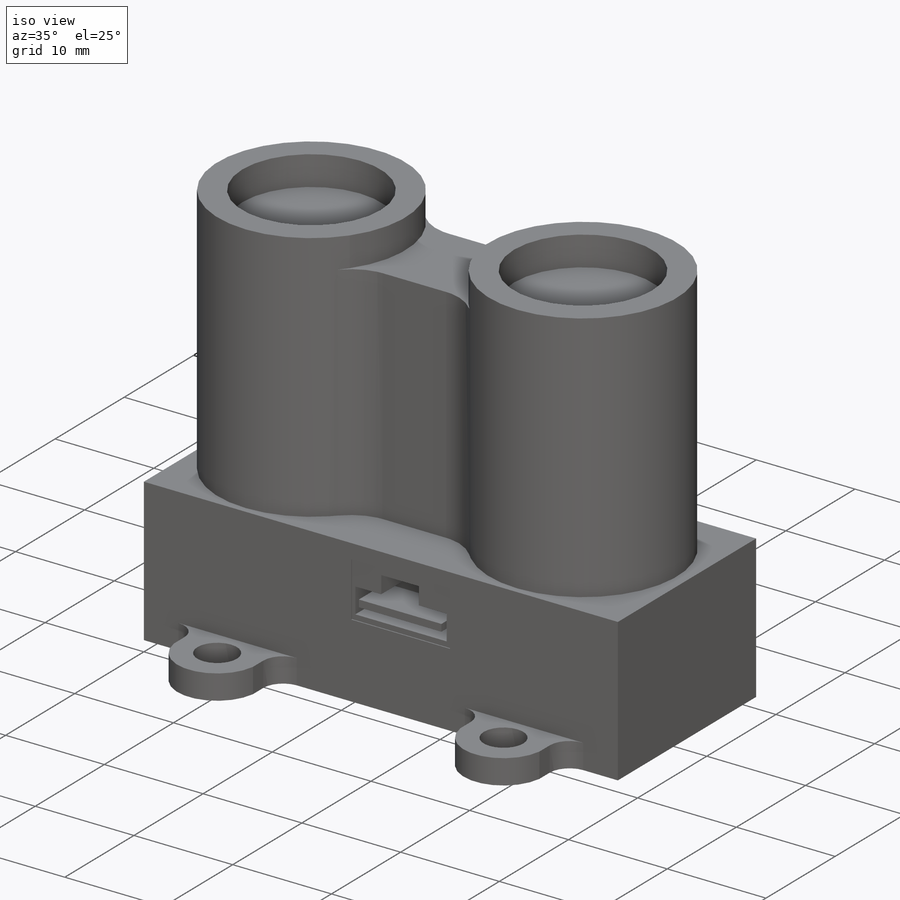
[diagram: iso view]
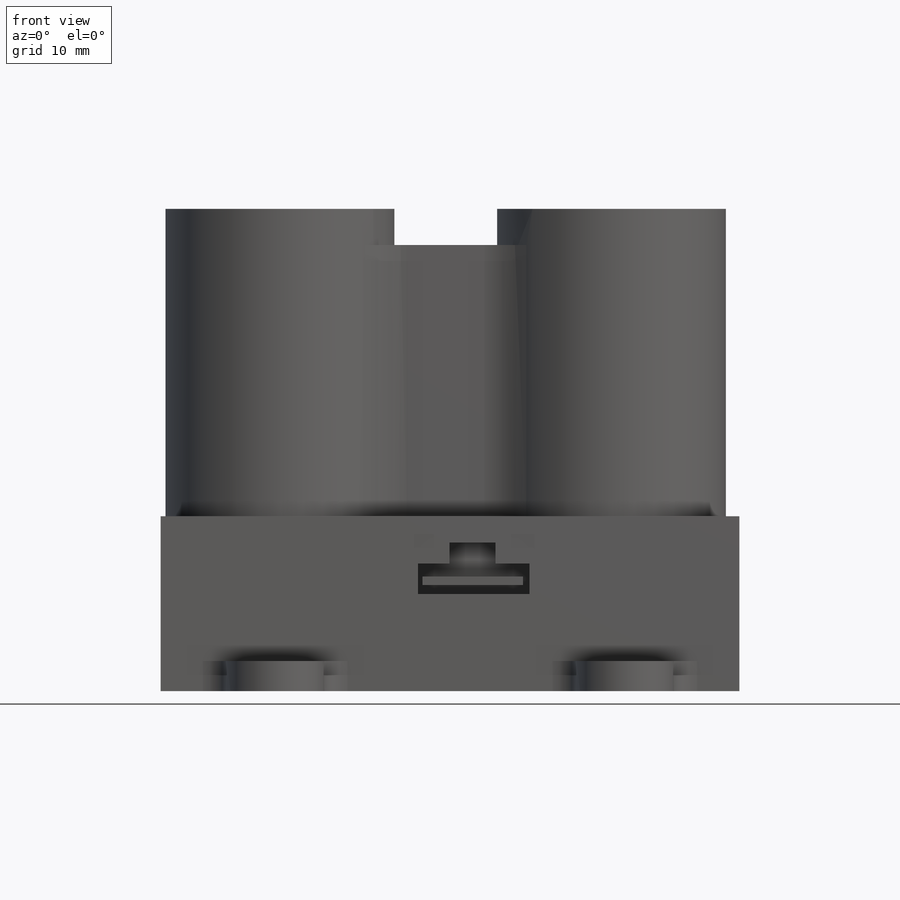
[diagram: front view]
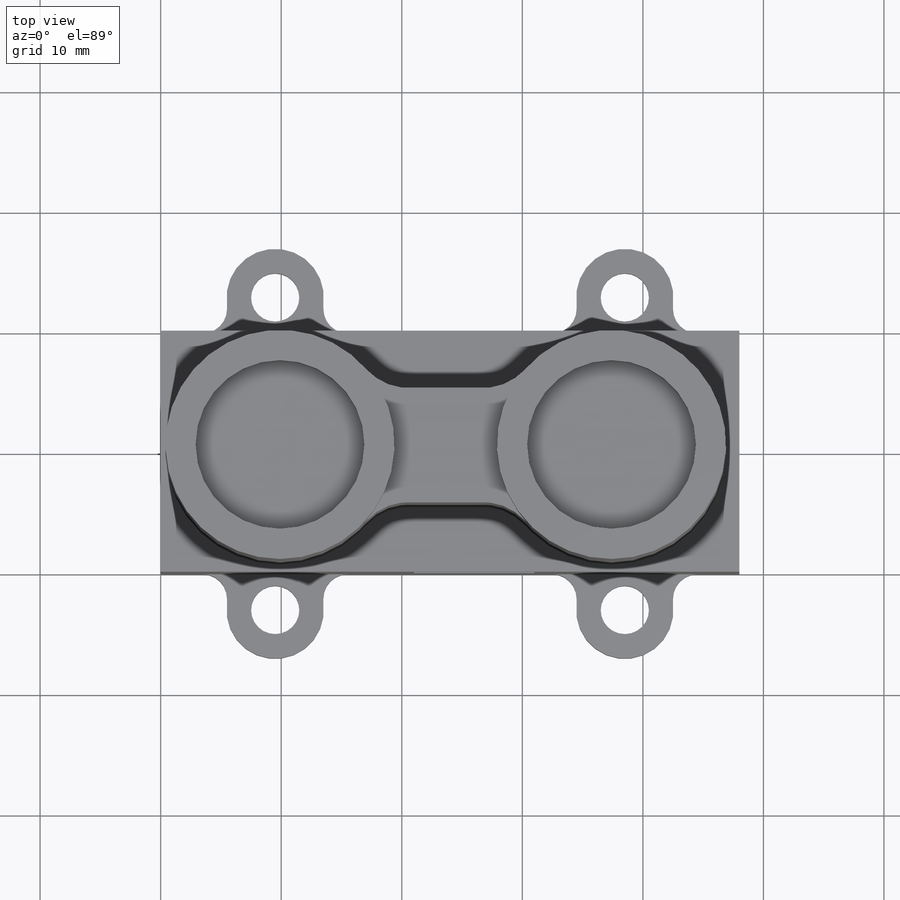
[diagram: top view]
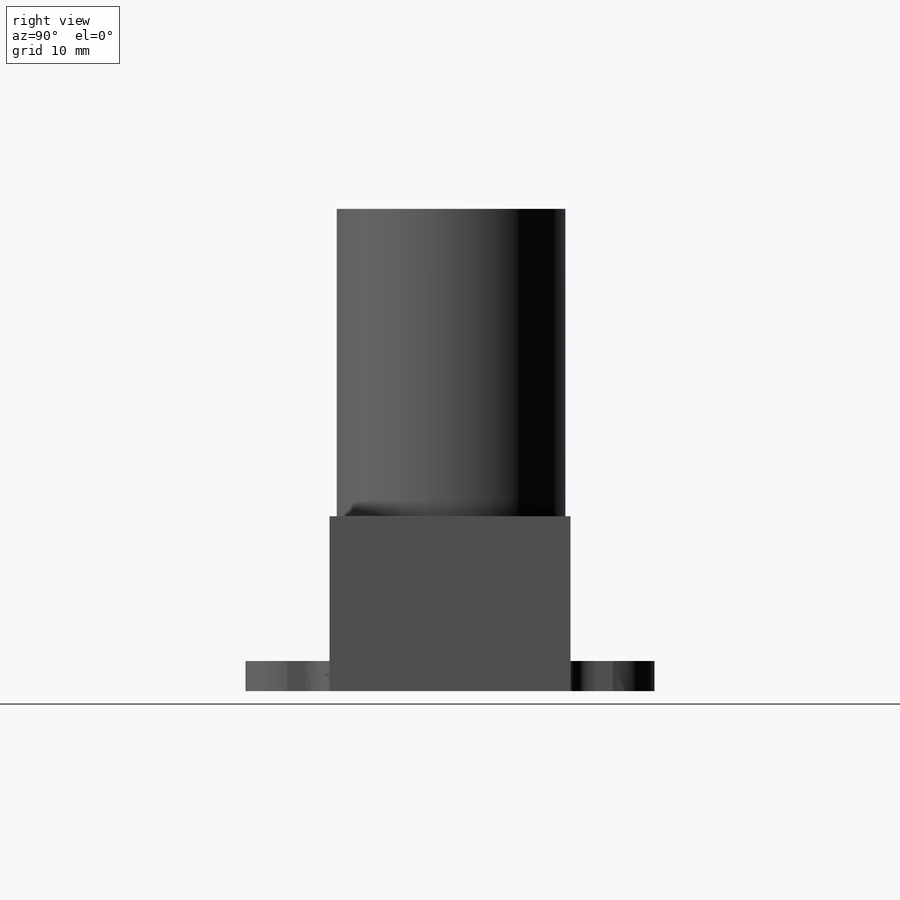
[diagram: right view]
SOLIDWORKS PART (.sldprt)
format: sldprt  version: not decoded by parser v0  size: 337,408 bytes
history: native  units: mm
features: sketch x9, cut_extrude x6, plane x3, extrude x3, material x1, fillet x1 (+9 scaffold rows collapsed)
feature tree (32):
  scaffold x9  (default folders/planes/origin — collapsed)
  material  "Matériau <non spécifié>"
  plane  "Plan de face"
  plane  "Plan de dessus"
  plane  "Plan de droite"
  sketch  "Esquisse1"  dims[D1=48.0mm D2=20.0mm D3=5.5mm D4=8.0mm D5=27.5mm]
  extrude  "Boss.-Extru.2"  Depth=40mm
  extrude  "Boss.-Extru.4"  [1 undecoded]
  sketch  "Esquisse1<3>"  dims[D1=2.5mm]
  fillet  "Congé1"  Radius=2mm
  sketch  "Esquisse3"  dims[c1.D1=19.0mm c1.D2=19.0mm c1.D4=19.0mm c1.D5=14.0mm c1.D6=14.0mm c2.D2=27.5mm c2.D3=5.0mm c2.D4=~5.672253mm c3.D3=4.75mm]
  cut_extrude  "Enlèv. mat.-Extru.2"  Depth=25.5mm
  cut_extrude  "Enlèv. mat.-Extru.3"  [1 undecoded]
  sketch  "Esquisse3<4>"  dims[D1=3.0mm]
  cut_extrude  "Enlèv. mat.-Extru.4"  [1 undecoded]
  sketch  "Esquisse3<5>"  dims[D1=25.5mm]
  sketch  "Esquisse8"  dims[D1=14.0mm D2=14.0mm]
  extrude  "Boss.-Extru.5"  Depth=2mm
  sketch  "Esquisse9"  dims[D1=10.0mm D2=5.5mm D3=17.0mm D4=1.5mm]
  cut_extrude  "Enlèv. mat.-Extru.5"  Depth=4mm
  cut_extrude  "Enlèv. mat.-Extru.6"  [1 undecoded]
  sketch  "Esquisse9<3>"  dims[D1=4.0mm]
  cut_extrude  "Enlèv. mat.-Extru.7"  [1 undecoded]
  sketch  "Esquisse9<5>"  dims[D1=0.1mm]
decode coverage: 14 of 19 modeling features carry decoded parameters
note: ~ marks probable driven/reference dimensions
note: 5 parameter values undecoded
summary: no parameter record found for 5 features
note: suppression state not decoded; provenance and decode notes live in map.json
